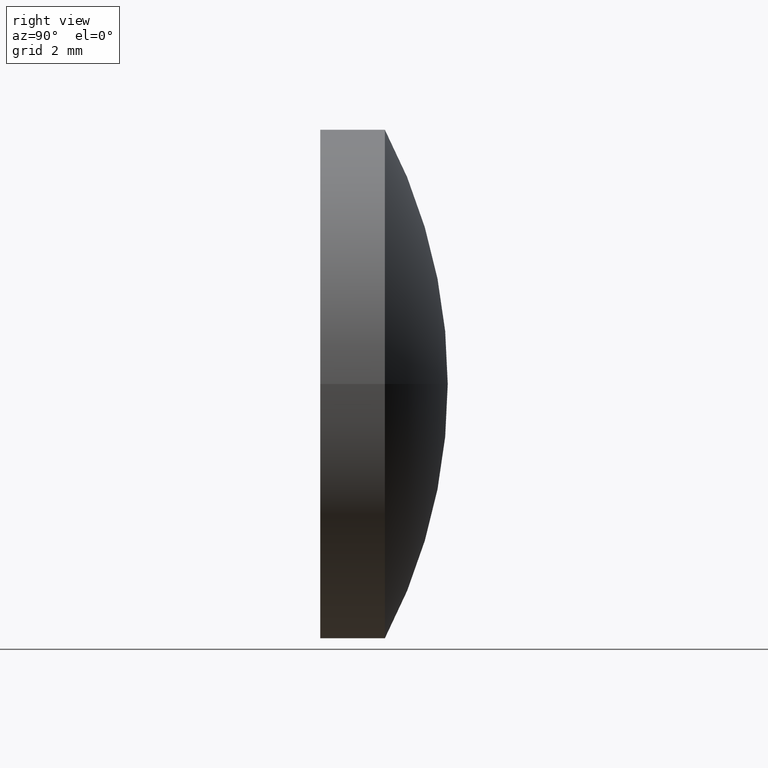
[diagram: clean part render]
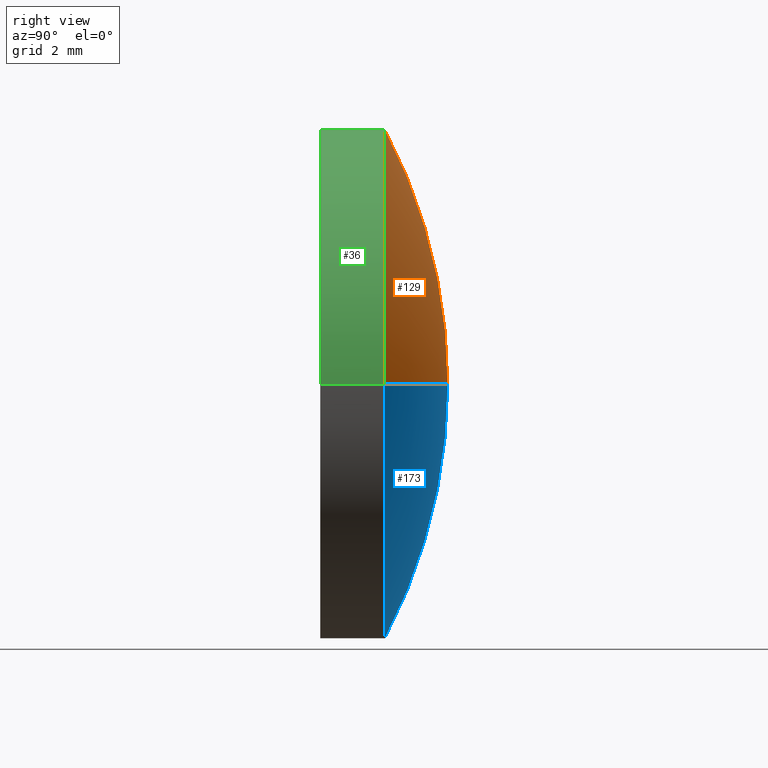
[diagram: same view with three faces highlighted in distinct colors, each labeled with its STEP entity id]
A machine part, right view with three faces highlighted in distinct colors.
Their STEP definitions:

[orange] entity #129 — the highlighted toroidal blend (fillet) surface has major radius 0.0019 mm and minor (blend) radius 12.91 mm.
#8 = EDGE_LOOP ( 'NONE', ( #153, #163, #55 ) ) ;
#11 = DIRECTION ( 'NONE',  ( -1.000000000000000000, 7.228014483236695816E-17, 0.000000000000000000 ) ) ;
#18 = TOROIDAL_SURFACE ( 'NONE', #79, -0.001933297626474807631, 12.91000000000000014 ) ;
#27 = CIRCLE ( 'NONE', #167, 6.000000000000000000 ) ;
#28 = CARTESIAN_POINT ( 'NONE',  ( 9.067520054024382547E-17, 1.519999999999998685, 0.000000000000000000 ) ) ;
#29 = CARTESIAN_POINT ( 'NONE',  ( 1.789642115925866215E-16, 3.000000000000000000, 0.000000000000000000 ) ) ;
#37 = VERTEX_POINT ( 'NONE', #71 ) ;
#42 = DIRECTION ( 'NONE',  ( 5.965473719752887796E-17, 1.000000000000000000, -0.000000000000000000 ) ) ;
#48 = AXIS2_PLACEMENT_3D ( 'NONE', #189, #137, #88 ) ;
#54 = CIRCLE ( 'NONE', #78, 12.91000000000000014 ) ;
#55 = ORIENTED_EDGE ( 'NONE', *, *, #73, .F. ) ;
#61 = CARTESIAN_POINT ( 'NONE',  ( -5.908054807098744865E-16, -9.909999855242457301, 0.000000000000000000 ) ) ;
#71 = CARTESIAN_POINT ( 'NONE',  ( -6.000000000000000000, 1.519999999999998908, 0.000000000000000000 ) ) ;
#73 = EDGE_CURVE ( 'NONE', #37, #191, #140, .T. ) ;
#78 = AXIS2_PLACEMENT_3D ( 'NONE', #128, #125, #199 ) ;
#79 = AXIS2_PLACEMENT_3D ( 'NONE', #61, #42, #103 ) ;
#87 = DIRECTION ( 'NONE',  ( 5.965473719752887796E-17, 1.000000000000000000, -0.000000000000000000 ) ) ;
#88 = DIRECTION ( 'NONE',  ( -1.000000000000000000, 0.000000000000000000, 0.000000000000000000 ) ) ;
#97 = VERTEX_POINT ( 'NONE', #183 ) ;
#103 = DIRECTION ( 'NONE',  ( -1.000000000000000000, 5.965473719752887796E-17, 0.000000000000000000 ) ) ;
#106 = EDGE_CURVE ( 'NONE', #37, #97, #27, .T. ) ;
#125 = DIRECTION ( 'NONE',  ( -1.224646799147353207E-16, 7.305598296293028514E-33, 1.000000000000000000 ) ) ;
#128 = CARTESIAN_POINT ( 'NONE',  ( -0.001933297626475398304, -9.909999855242457301, -2.367606750061548291E-19 ) ) ;
#129 = ADVANCED_FACE ( 'NONE', ( #170 ), #18, .T. ) ;
#137 = DIRECTION ( 'NONE',  ( -0.000000000000000000, 0.000000000000000000, -1.000000000000000000 ) ) ;
#140 = CIRCLE ( 'NONE', #48, 12.91000000000000014 ) ;
#153 = ORIENTED_EDGE ( 'NONE', *, *, #106, .T. ) ;
#163 = ORIENTED_EDGE ( 'NONE', *, *, #198, .T. ) ;
#167 = AXIS2_PLACEMENT_3D ( 'NONE', #28, #87, #11 ) ;
#170 = FACE_OUTER_BOUND ( 'NONE', #8, .T. ) ;
#183 = CARTESIAN_POINT ( 'NONE',  ( 6.000000000000000000, 1.519999999999998463, 7.347880794884119736E-16 ) ) ;
#189 = CARTESIAN_POINT ( 'NONE',  ( 0.001933297626474216740, -9.909999855242457301, 0.000000000000000000 ) ) ;
#191 = VERTEX_POINT ( 'NONE', #29 ) ;
#198 = EDGE_CURVE ( 'NONE', #97, #191, #54, .T. ) ;
#199 = DIRECTION ( 'NONE',  ( 1.000000000000000000, 0.000000000000000000, 1.224646799147353207E-16 ) ) ;

[blue] entity #173 — the highlighted toroidal blend (fillet) surface has major radius 0.0019 mm and minor (blend) radius 12.91 mm.
#3 = TOROIDAL_SURFACE ( 'NONE', #74, -0.001933297626474807631, 12.91000000000000014 ) ;
#6 = CIRCLE ( 'NONE', #154, 6.000000000000000000 ) ;
#29 = CARTESIAN_POINT ( 'NONE',  ( 1.789642115925866215E-16, 3.000000000000000000, 0.000000000000000000 ) ) ;
#31 = FACE_OUTER_BOUND ( 'NONE', #117, .T. ) ;
#37 = VERTEX_POINT ( 'NONE', #71 ) ;
#48 = AXIS2_PLACEMENT_3D ( 'NONE', #189, #137, #88 ) ;
#54 = CIRCLE ( 'NONE', #78, 12.91000000000000014 ) ;
#71 = CARTESIAN_POINT ( 'NONE',  ( -6.000000000000000000, 1.519999999999998908, 0.000000000000000000 ) ) ;
#73 = EDGE_CURVE ( 'NONE', #37, #191, #140, .T. ) ;
#74 = AXIS2_PLACEMENT_3D ( 'NONE', #107, #193, #143 ) ;
#78 = AXIS2_PLACEMENT_3D ( 'NONE', #128, #125, #199 ) ;
#80 = EDGE_CURVE ( 'NONE', #97, #37, #6, .T. ) ;
#88 = DIRECTION ( 'NONE',  ( -1.000000000000000000, 0.000000000000000000, 0.000000000000000000 ) ) ;
#97 = VERTEX_POINT ( 'NONE', #183 ) ;
#98 = ORIENTED_EDGE ( 'NONE', *, *, #198, .F. ) ;
#107 = CARTESIAN_POINT ( 'NONE',  ( -5.908054807098744865E-16, -9.909999855242457301, 0.000000000000000000 ) ) ;
#117 = EDGE_LOOP ( 'NONE', ( #98, #182, #178 ) ) ;
#125 = DIRECTION ( 'NONE',  ( -1.224646799147353207E-16, 7.305598296293028514E-33, 1.000000000000000000 ) ) ;
#128 = CARTESIAN_POINT ( 'NONE',  ( -0.001933297626475398304, -9.909999855242457301, -2.367606750061548291E-19 ) ) ;
#137 = DIRECTION ( 'NONE',  ( -0.000000000000000000, 0.000000000000000000, -1.000000000000000000 ) ) ;
#140 = CIRCLE ( 'NONE', #48, 12.91000000000000014 ) ;
#141 = DIRECTION ( 'NONE',  ( -1.000000000000000000, 7.228014483236695816E-17, 0.000000000000000000 ) ) ;
#143 = DIRECTION ( 'NONE',  ( -1.000000000000000000, 5.965473719752887796E-17, 0.000000000000000000 ) ) ;
#154 = AXIS2_PLACEMENT_3D ( 'NONE', #166, #168, #141 ) ;
#166 = CARTESIAN_POINT ( 'NONE',  ( 9.067520054024382547E-17, 1.519999999999998685, 0.000000000000000000 ) ) ;
#168 = DIRECTION ( 'NONE',  ( 5.965473719752887796E-17, 1.000000000000000000, -0.000000000000000000 ) ) ;
#173 = ADVANCED_FACE ( 'NONE', ( #31 ), #3, .T. ) ;
#178 = ORIENTED_EDGE ( 'NONE', *, *, #73, .T. ) ;
#182 = ORIENTED_EDGE ( 'NONE', *, *, #80, .T. ) ;
#183 = CARTESIAN_POINT ( 'NONE',  ( 6.000000000000000000, 1.519999999999998463, 7.347880794884119736E-16 ) ) ;
#189 = CARTESIAN_POINT ( 'NONE',  ( 0.001933297626474216740, -9.909999855242457301, 0.000000000000000000 ) ) ;
#191 = VERTEX_POINT ( 'NONE', #29 ) ;
#193 = DIRECTION ( 'NONE',  ( 5.965473719752887796E-17, 1.000000000000000000, -0.000000000000000000 ) ) ;
#198 = EDGE_CURVE ( 'NONE', #97, #191, #54, .T. ) ;
#199 = DIRECTION ( 'NONE',  ( 1.000000000000000000, 0.000000000000000000, 1.224646799147353207E-16 ) ) ;

[green] entity #36 — the highlighted cylindrical surface (partial cylindrical patch) has radius 6 mm, axis along (0, 1, -0).
#4 = EDGE_CURVE ( 'NONE', #38, #37, #21, .T. ) ;
#5 = CYLINDRICAL_SURFACE ( 'NONE', #139, 6.000000000000000000 ) ;
#7 = CARTESIAN_POINT ( 'NONE',  ( 1.789642115925866215E-16, 3.000000000000000000, 0.000000000000000000 ) ) ;
#9 = CIRCLE ( 'NONE', #120, 6.000000000000000000 ) ;
#11 = DIRECTION ( 'NONE',  ( -1.000000000000000000, 7.228014483236695816E-17, 0.000000000000000000 ) ) ;
#21 = LINE ( 'NONE', #24, #33 ) ;
#24 = CARTESIAN_POINT ( 'NONE',  ( -6.000000000000000000, 3.000000000000000444, 0.000000000000000000 ) ) ;
#26 = EDGE_CURVE ( 'NONE', #53, #97, #83, .T. ) ;
#27 = CIRCLE ( 'NONE', #167, 6.000000000000000000 ) ;
#28 = CARTESIAN_POINT ( 'NONE',  ( 9.067520054024382547E-17, 1.519999999999998685, 0.000000000000000000 ) ) ;
#33 = VECTOR ( 'NONE', #135, 1000.000000000000000 ) ;
#36 = ADVANCED_FACE ( 'NONE', ( #181 ), #5, .T. ) ;
#37 = VERTEX_POINT ( 'NONE', #71 ) ;
#38 = VERTEX_POINT ( 'NONE', #58 ) ;
#40 = DIRECTION ( 'NONE',  ( 5.965473719752887796E-17, 1.000000000000000000, -0.000000000000000000 ) ) ;
#53 = VERTEX_POINT ( 'NONE', #70 ) ;
#58 = CARTESIAN_POINT ( 'NONE',  ( -6.000000000000000000, -9.431141837974319298E-16, 0.000000000000000000 ) ) ;
#70 = CARTESIAN_POINT ( 'NONE',  ( 6.000000000000000000, -1.658971030167778712E-15, 7.347880794884119736E-16 ) ) ;
#71 = CARTESIAN_POINT ( 'NONE',  ( -6.000000000000000000, 1.519999999999998908, 0.000000000000000000 ) ) ;
#82 = ORIENTED_EDGE ( 'NONE', *, *, #106, .F. ) ;
#83 = LINE ( 'NONE', #149, #148 ) ;
#87 = DIRECTION ( 'NONE',  ( 5.965473719752887796E-17, 1.000000000000000000, -0.000000000000000000 ) ) ;
#93 = DIRECTION ( 'NONE',  ( 5.965473719752887796E-17, 1.000000000000000000, -0.000000000000000000 ) ) ;
#97 = VERTEX_POINT ( 'NONE', #183 ) ;
#99 = DIRECTION ( 'NONE',  ( -1.000000000000000000, 7.228014483236695816E-17, 0.000000000000000000 ) ) ;
#106 = EDGE_CURVE ( 'NONE', #37, #97, #27, .T. ) ;
#115 = EDGE_LOOP ( 'NONE', ( #134, #121, #82, #164 ) ) ;
#119 = DIRECTION ( 'NONE',  ( 5.965473719752887796E-17, 1.000000000000000000, -0.000000000000000000 ) ) ;
#120 = AXIS2_PLACEMENT_3D ( 'NONE', #122, #93, #155 ) ;
#121 = ORIENTED_EDGE ( 'NONE', *, *, #26, .T. ) ;
#122 = CARTESIAN_POINT ( 'NONE',  ( -7.222237291452134449E-32, -1.301042606982605321E-15, 0.000000000000000000 ) ) ;
#134 = ORIENTED_EDGE ( 'NONE', *, *, #180, .T. ) ;
#135 = DIRECTION ( 'NONE',  ( 5.965473719752887796E-17, 1.000000000000000000, -0.000000000000000000 ) ) ;
#139 = AXIS2_PLACEMENT_3D ( 'NONE', #7, #40, #99 ) ;
#148 = VECTOR ( 'NONE', #119, 1000.000000000000000 ) ;
#149 = CARTESIAN_POINT ( 'NONE',  ( 6.000000000000000000, 2.999999999999999556, 7.347880794884119736E-16 ) ) ;
#155 = DIRECTION ( 'NONE',  ( -1.000000000000000000, 5.965473719752889028E-17, 0.000000000000000000 ) ) ;
#164 = ORIENTED_EDGE ( 'NONE', *, *, #4, .F. ) ;
#167 = AXIS2_PLACEMENT_3D ( 'NONE', #28, #87, #11 ) ;
#180 = EDGE_CURVE ( 'NONE', #38, #53, #9, .T. ) ;
#181 = FACE_OUTER_BOUND ( 'NONE', #115, .T. ) ;
#183 = CARTESIAN_POINT ( 'NONE',  ( 6.000000000000000000, 1.519999999999998463, 7.347880794884119736E-16 ) ) ;